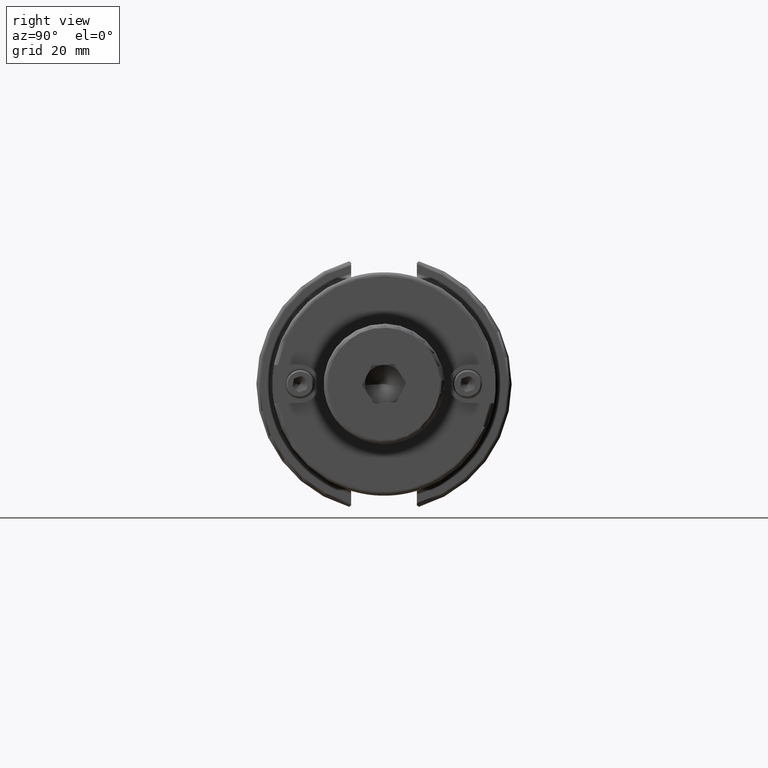
[diagram: clean part render]
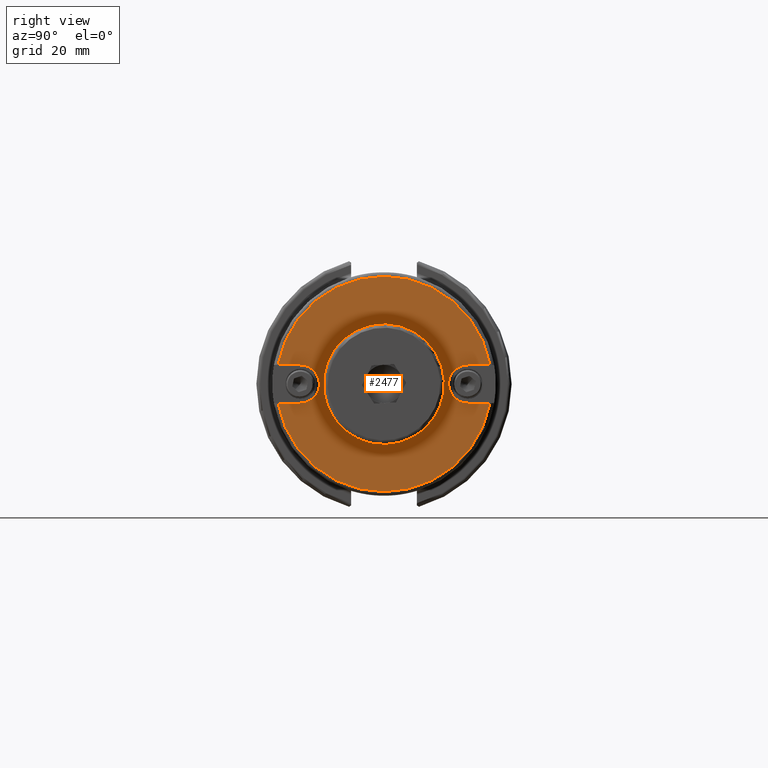
[diagram: same view with one face highlighted and labeled with its STEP entity id]
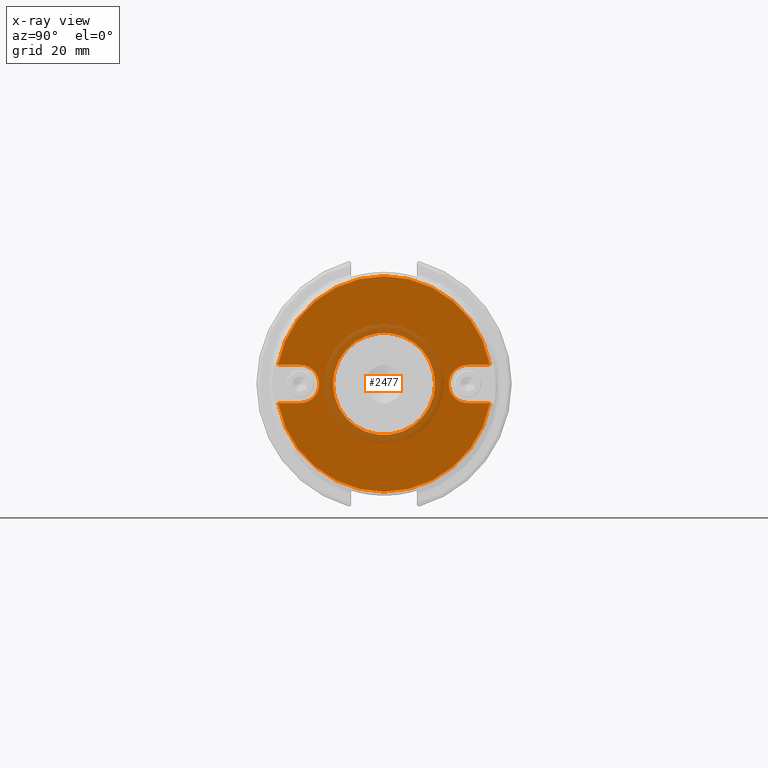
[diagram: x-ray of the same camera — body ghosted, the highlighted face saturated]
A machine part, right view. The second image highlights one B-rep face of the part: STEP entity #2477.
The next image is the same camera in x-ray: the body ghosted, the highlighted face saturated — about 13% of this face is hidden behind the body in this view.
In plain terms, the highlighted planar face has unit normal (1, 0, 0).
Its self-contained STEP definition (entity closure, byte-faithful):
#176=FACE_BOUND('',#501,.T.);
#200=CIRCLE('',#2714,4.76);
#207=CIRCLE('',#2724,26.79);
#208=CIRCLE('',#2726,26.79);
#212=CIRCLE('',#2735,4.76);
#225=CIRCLE('',#2757,12.7);
#348=FACE_OUTER_BOUND('',#500,.T.);
#500=EDGE_LOOP('',(#1754,#1755,#1756,#1757,#1758,#1759,#1760,#1761));
#501=EDGE_LOOP('',(#1762));
#643=LINE('',#3800,#807);
#652=LINE('',#3841,#816);
#662=LINE('',#3942,#826);
#667=LINE('',#3955,#831);
#807=VECTOR('',#3014,10.);
#816=VECTOR('',#3045,10.);
#826=VECTOR('',#3087,10.);
#831=VECTOR('',#3102,10.);
#1011=VERTEX_POINT('',#3787);
#1013=VERTEX_POINT('',#3799);
#1022=VERTEX_POINT('',#3824);
#1024=VERTEX_POINT('',#3829);
#1038=VERTEX_POINT('',#3906);
#1039=VERTEX_POINT('',#3919);
#1043=VERTEX_POINT('',#3941);
#1046=VERTEX_POINT('',#3951);
#1064=VERTEX_POINT('',#4108);
#1260=EDGE_CURVE('',#1013,#1011,#643,.T.);
#1272=EDGE_CURVE('',#1022,#1013,#200,.T.);
#1276=EDGE_CURVE('',#1024,#1022,#652,.T.);
#1292=EDGE_CURVE('',#1024,#1038,#207,.T.);
#1295=EDGE_CURVE('',#1039,#1011,#208,.T.);
#1300=EDGE_CURVE('',#1043,#1038,#662,.T.);
#1305=EDGE_CURVE('',#1046,#1043,#212,.T.);
#1307=EDGE_CURVE('',#1039,#1046,#667,.T.);
#1332=EDGE_CURVE('',#1064,#1064,#225,.T.);
#1754=ORIENTED_EDGE('',*,*,#1260,.T.);
#1755=ORIENTED_EDGE('',*,*,#1295,.F.);
#1756=ORIENTED_EDGE('',*,*,#1307,.T.);
#1757=ORIENTED_EDGE('',*,*,#1305,.T.);
#1758=ORIENTED_EDGE('',*,*,#1300,.T.);
#1759=ORIENTED_EDGE('',*,*,#1292,.F.);
#1760=ORIENTED_EDGE('',*,*,#1276,.T.);
#1761=ORIENTED_EDGE('',*,*,#1272,.T.);
#1762=ORIENTED_EDGE('',*,*,#1332,.F.);
#2391=PLANE('',#2758);
#2477=ADVANCED_FACE('',(#348,#176),#2391,.T.);
#2714=AXIS2_PLACEMENT_3D('',#3825,#3039,#3040);
#2724=AXIS2_PLACEMENT_3D('',#3907,#3069,#3070);
#2726=AXIS2_PLACEMENT_3D('',#3930,#3073,#3074);
#2735=AXIS2_PLACEMENT_3D('',#3952,#3097,#3098);
#2757=AXIS2_PLACEMENT_3D('',#4110,#3147,#3148);
#2758=AXIS2_PLACEMENT_3D('',#4111,#3149,#3150);
#3014=DIRECTION('',(0.,-1.,1.22464679914735E-16));
#3039=DIRECTION('center_axis',(-1.,0.,0.));
#3040=DIRECTION('ref_axis',(0.,-1.22464679914735E-16,-1.));
#3045=DIRECTION('',(0.,1.,-1.22464679914735E-16));
#3069=DIRECTION('center_axis',(-1.,0.,0.));
#3070=DIRECTION('ref_axis',(0.,-1.,1.83697019872103E-16));
#3073=DIRECTION('center_axis',(-1.,0.,0.));
#3074=DIRECTION('ref_axis',(0.,-1.,1.83697019872103E-16));
#3087=DIRECTION('',(0.,1.,0.));
#3097=DIRECTION('center_axis',(-1.,0.,0.));
#3098=DIRECTION('ref_axis',(0.,0.,1.));
#3102=DIRECTION('',(0.,-1.,0.));
#3147=DIRECTION('center_axis',(1.,0.,0.));
#3148=DIRECTION('ref_axis',(0.,0.,-1.));
#3149=DIRECTION('center_axis',(1.,0.,0.));
#3150=DIRECTION('ref_axis',(0.,0.,-1.));
#3787=CARTESIAN_POINT('',(50.8,-26.3637345609456,-4.76));
#3799=CARTESIAN_POINT('',(50.8,-20.85,-4.76));
#3800=CARTESIAN_POINT('',(50.8,-4.075,-4.76));
#3824=CARTESIAN_POINT('',(50.8,-20.85,4.76));
#3825=CARTESIAN_POINT('Origin',(50.8,-20.85,2.55338857622223E-15));
#3829=CARTESIAN_POINT('',(50.8,-26.3637345609456,4.76));
#3841=CARTESIAN_POINT('',(50.8,-9.545,4.76));
#3906=CARTESIAN_POINT('',(50.8,26.3637345609456,4.76));
#3907=CARTESIAN_POINT('Origin',(50.8,0.,0.));
#3919=CARTESIAN_POINT('',(50.8,26.3637345609456,-4.76));
#3930=CARTESIAN_POINT('Origin',(50.8,0.,0.));
#3941=CARTESIAN_POINT('',(50.8,20.85,4.76));
#3942=CARTESIAN_POINT('',(50.8,16.775,4.76));
#3951=CARTESIAN_POINT('',(50.8,20.85,-4.76));
#3952=CARTESIAN_POINT('Origin',(50.8,20.85,0.));
#3955=CARTESIAN_POINT('',(50.8,22.245,-4.76));
#4108=CARTESIAN_POINT('',(50.8,-12.7,-1.55530143491714E-15));
#4110=CARTESIAN_POINT('Origin',(50.8,0.,0.));
#4111=CARTESIAN_POINT('Origin',(50.8,12.7,0.));